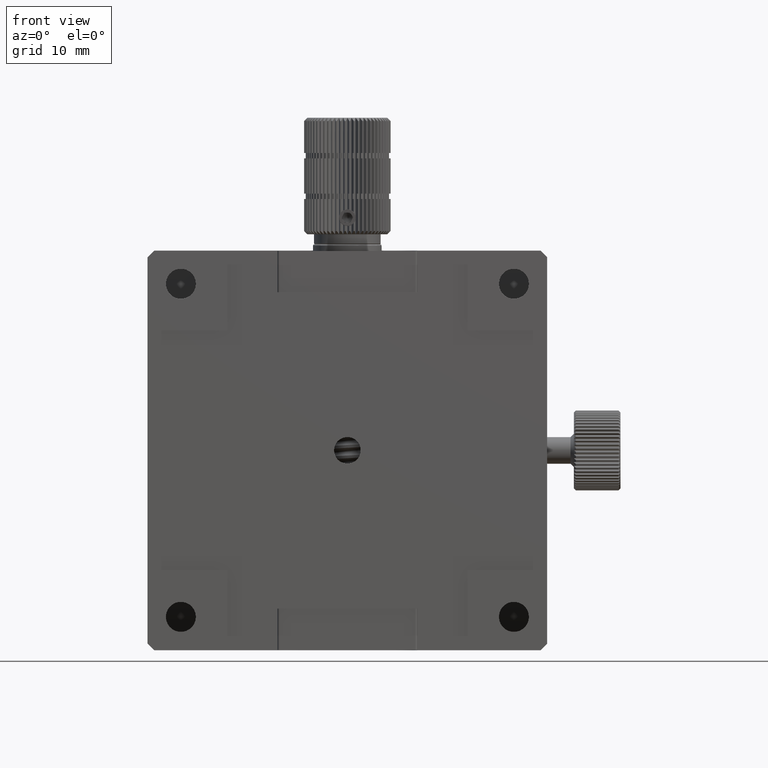
[diagram: clean part render]
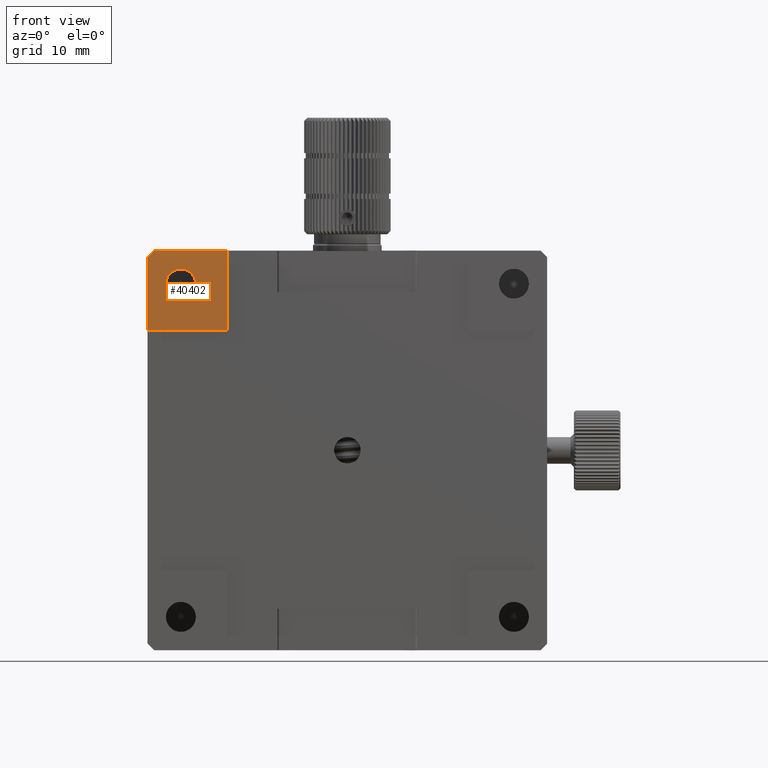
[diagram: same view with one face highlighted and labeled with its STEP entity id]
A machine part, front view. The second image highlights one B-rep face of the part: STEP entity #40402.
In plain terms, the highlighted planar face has unit normal (-0, -1, 0).
Its self-contained STEP definition (entity closure, byte-faithful):
#1508 = CARTESIAN_POINT ( 'NONE',  ( 20.05815170115014823, 36.33657315266990651, 80.22904667704491999 ) ) ;
#2743 = DIRECTION ( 'NONE',  ( -3.491481338843133355E-15, -1.000000000000000000, 1.219044193948983948E-29 ) ) ;
#4558 = EDGE_LOOP ( 'NONE', ( #21961, #16567, #43523, #57700, #6162 ) ) ;
#5269 = CARTESIAN_POINT ( 'NONE',  ( 25.05815170115002744, 36.33657315266988519, 75.22904667704491999 ) ) ;
#6162 = ORIENTED_EDGE ( 'NONE', *, *, #47546, .F. ) ;
#7058 = LINE ( 'NONE', #28380, #12584 ) ;
#8364 = CARTESIAN_POINT ( 'NONE',  ( 20.05815170115002033, 36.33657315266989229, 68.22904667704494841 ) ) ;
#8725 = LINE ( 'NONE', #60735, #59265 ) ;
#10633 = DIRECTION ( 'NONE',  ( -2.913240180184197789E-15, 1.017152372468113427E-29, -1.000000000000000000 ) ) ;
#11391 = EDGE_CURVE ( 'NONE', #63774, #63774, #37106, .T. ) ;
#12584 = VECTOR ( 'NONE', #53929, 1000.000000000000114 ) ;
#16355 = VERTEX_POINT ( 'NONE', #35792 ) ;
#16567 = ORIENTED_EDGE ( 'NONE', *, *, #46293, .F. ) ;
#17172 = CARTESIAN_POINT ( 'NONE',  ( 32.05815170115002388, 36.33657315266988519, 80.22904667704489157 ) ) ;
#18045 = VECTOR ( 'NONE', #35596, 1000.000000000000000 ) ;
#19569 = VERTEX_POINT ( 'NONE', #50332 ) ;
#21961 = ORIENTED_EDGE ( 'NONE', *, *, #42860, .F. ) ;
#22697 = CARTESIAN_POINT ( 'NONE',  ( 20.05815170115006651, 36.33657315266990651, 80.22904667704491999 ) ) ;
#23014 = PLANE ( 'NONE',  #65152 ) ;
#24491 = LINE ( 'NONE', #26095, #64544 ) ;
#26095 = CARTESIAN_POINT ( 'NONE',  ( 32.05815170115003099, 36.33657315266986387, 80.22904667704490578 ) ) ;
#26228 = DIRECTION ( 'NONE',  ( -1.000000000000000000, 3.083952846180988111E-15, 0.000000000000000000 ) ) ;
#26561 = CARTESIAN_POINT ( 'NONE',  ( 22.80815170115002388, 36.33657315266989229, 75.22904667704491999 ) ) ;
#27849 = FACE_BOUND ( 'NONE', #67334, .T. ) ;
#28288 = AXIS2_PLACEMENT_3D ( 'NONE', #5269, #63461, #26228 ) ;
#28380 = CARTESIAN_POINT ( 'NONE',  ( 21.05815170115007007, 36.33657315266989940, 80.22904667704491999 ) ) ;
#29543 = VERTEX_POINT ( 'NONE', #17172 ) ;
#35596 = DIRECTION ( 'NONE',  ( 3.491481338843133355E-15, 0.000000000000000000, 1.000000000000000000 ) ) ;
#35792 = CARTESIAN_POINT ( 'NONE',  ( 32.05815170115000967, 36.33657315266986387, 68.22904667704490578 ) ) ;
#37106 = CIRCLE ( 'NONE', #28288, 2.250000000000001776 ) ;
#38668 = DIRECTION ( 'NONE',  ( 1.000000000000000000, 0.000000000000000000, -3.491481338843133355E-15 ) ) ;
#38878 = DIRECTION ( 'NONE',  ( 1.000000000000000000, -3.491481338843133355E-15, 0.000000000000000000 ) ) ;
#39588 = VERTEX_POINT ( 'NONE', #8364 ) ;
#40402 = ADVANCED_FACE ( 'NONE', ( #60239, #27849 ), #23014, .T. ) ;
#42860 = EDGE_CURVE ( 'NONE', #16355, #39588, #8725, .T. ) ;
#43523 = ORIENTED_EDGE ( 'NONE', *, *, #50302, .F. ) ;
#46293 = EDGE_CURVE ( 'NONE', #29543, #16355, #24491, .T. ) ;
#47546 = EDGE_CURVE ( 'NONE', #39588, #64361, #61791, .T. ) ;
#47925 = ORIENTED_EDGE ( 'NONE', *, *, #11391, .T. ) ;
#50302 = EDGE_CURVE ( 'NONE', #19569, #29543, #64845, .T. ) ;
#50332 = CARTESIAN_POINT ( 'NONE',  ( 21.05815170115011625, 36.33657315266989940, 80.22904667704493420 ) ) ;
#50466 = CARTESIAN_POINT ( 'NONE',  ( 20.05815170114995638, 36.33657315266991361, 50.22904667704492709 ) ) ;
#53929 = DIRECTION ( 'NONE',  ( -0.7071067811865500152, 4.906538933386775154E-15, -0.7071067811865451302 ) ) ;
#55926 = DIRECTION ( 'NONE',  ( -1.000000000000000000, 0.000000000000000000, 3.491481338843133355E-15 ) ) ;
#56833 = EDGE_CURVE ( 'NONE', #19569, #64361, #7058, .T. ) ;
#57700 = ORIENTED_EDGE ( 'NONE', *, *, #56833, .T. ) ;
#59265 = VECTOR ( 'NONE', #55926, 1000.000000000000000 ) ;
#60239 = FACE_OUTER_BOUND ( 'NONE', #4558, .T. ) ;
#60735 = CARTESIAN_POINT ( 'NONE',  ( 20.05815170115000967, 36.33657315266986387, 68.22904667704494841 ) ) ;
#61791 = LINE ( 'NONE', #50466, #18045 ) ;
#62327 = VECTOR ( 'NONE', #38668, 1000.000000000000000 ) ;
#63461 = DIRECTION ( 'NONE',  ( 3.491481338843133355E-15, 1.000000000000000000, -1.219044193948983948E-29 ) ) ;
#63774 = VERTEX_POINT ( 'NONE', #26561 ) ;
#64361 = VERTEX_POINT ( 'NONE', #65240 ) ;
#64544 = VECTOR ( 'NONE', #10633, 1000.000000000000000 ) ;
#64845 = LINE ( 'NONE', #1508, #62327 ) ;
#65152 = AXIS2_PLACEMENT_3D ( 'NONE', #22697, #2743, #38878 ) ;
#65240 = CARTESIAN_POINT ( 'NONE',  ( 20.05815170115005941, 36.33657315266991361, 79.22904667704491999 ) ) ;
#67334 = EDGE_LOOP ( 'NONE', ( #47925 ) ) ;